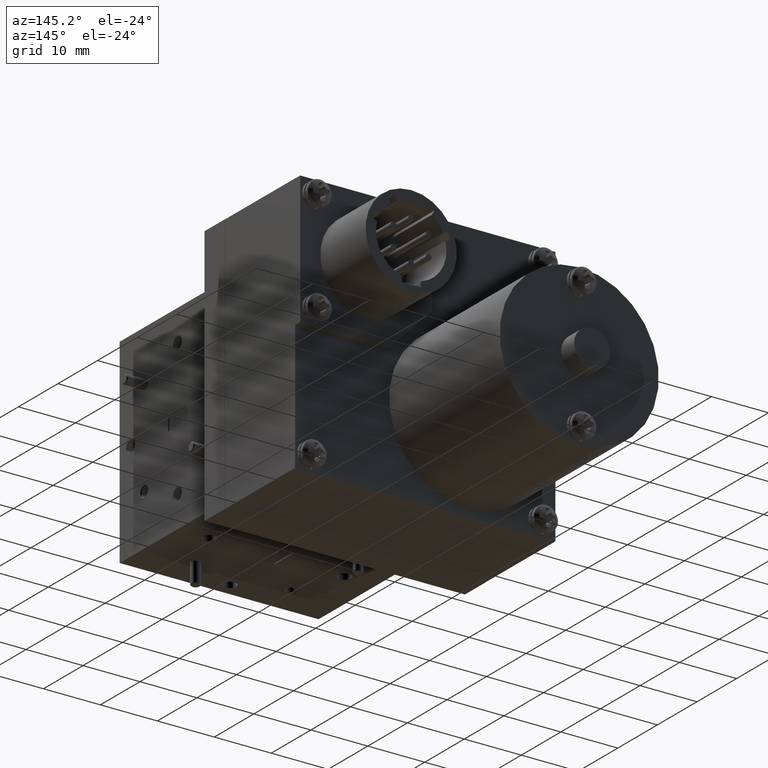
[diagram: clean part render]
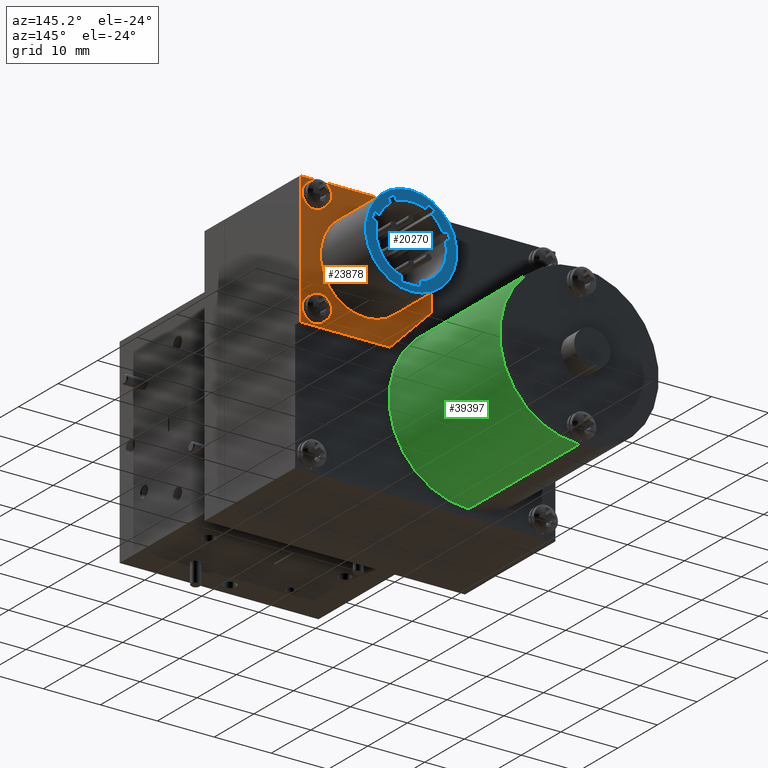
[diagram: same view with three faces highlighted in distinct colors, each labeled with its STEP entity id]
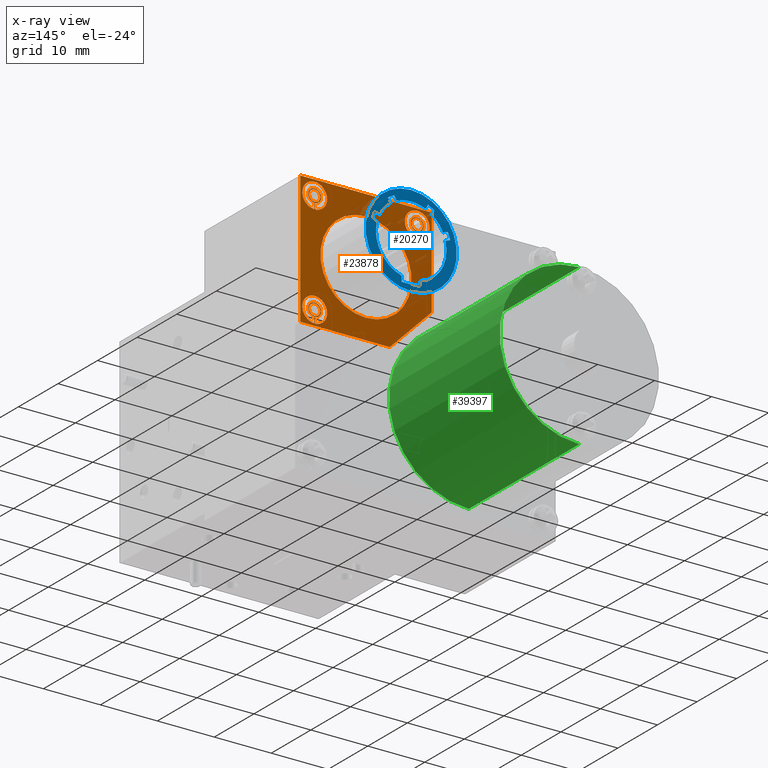
[diagram: x-ray of the same camera — body ghosted, the three highlighted faces saturated]
A machine part, auxiliary view with three faces highlighted in distinct colors.
The next image is the same camera in x-ray (body ghosted, the three faces saturated) — at least one of them is partly hidden behind the body in this view.
Their STEP definitions:

[orange] entity #23878 — the highlighted planar face has unit normal (0, -1, 0).
#163 = FACE_BOUND ( 'NONE', #20244, .T. ) ;
#285 = ORIENTED_EDGE ( 'NONE', *, *, #16000, .T. ) ;
#438 = EDGE_CURVE ( 'NONE', #40076, #31772, #18158, .T. ) ;
#530 = EDGE_LOOP ( 'NONE', ( #4536, #17049 ) ) ;
#538 = CARTESIAN_POINT ( 'NONE',  ( 0.09250000000000011000, 2.099999999999999600, 0.7130363448892497200 ) ) ;
#980 = DIRECTION ( 'NONE',  ( 0.0000000000000000000, 0.0000000000000000000, -1.000000000000000000 ) ) ;
#1005 = VERTEX_POINT ( 'NONE', #30711 ) ;
#1132 = ORIENTED_EDGE ( 'NONE', *, *, #12136, .F. ) ;
#1352 = DIRECTION ( 'NONE',  ( 0.0000000000000000000, 0.0000000000000000000, 1.000000000000000000 ) ) ;
#1948 = DIRECTION ( 'NONE',  ( -1.300324297232245500E-017, -6.548161810916578900E-032, 1.000000000000000000 ) ) ;
#2496 = ORIENTED_EDGE ( 'NONE', *, *, #19204, .F. ) ;
#2534 = ORIENTED_EDGE ( 'NONE', *, *, #438, .F. ) ;
#2707 = CARTESIAN_POINT ( 'NONE',  ( 0.8015000000000004300, 2.099999999999999600, 0.04506949811097104400 ) ) ;
#3162 = VERTEX_POINT ( 'NONE', #7034 ) ;
#3704 = EDGE_CURVE ( 'NONE', #13641, #27987, #28078, .T. ) ;
#3874 = ORIENTED_EDGE ( 'NONE', *, *, #23909, .F. ) ;
#4044 = PLANE ( 'NONE',  #16380 ) ;
#4195 = DIRECTION ( 'NONE',  ( 0.0000000000000000000, -1.000000000000000000, 0.0000000000000000000 ) ) ;
#4441 = EDGE_LOOP ( 'NONE', ( #14642, #2534 ) ) ;
#4536 = ORIENTED_EDGE ( 'NONE', *, *, #22810, .F. ) ;
#5039 = EDGE_LOOP ( 'NONE', ( #33172, #3874, #41847, #2496 ) ) ;
#5099 = DIRECTION ( 'NONE',  ( 0.0000000000000000000, 0.0000000000000000000, 1.000000000000000000 ) ) ;
#5659 = CARTESIAN_POINT ( 'NONE',  ( 0.8015000000000004300, 2.099999999999999600, 0.7540694981109714600 ) ) ;
#6064 = CIRCLE ( 'NONE', #21736, 0.08600000000000025700 ) ;
#6188 = DIRECTION ( 'NONE',  ( -0.0000000000000000000, 1.000000000000000000, -0.0000000000000000000 ) ) ;
#6470 = ORIENTED_EDGE ( 'NONE', *, *, #12159, .F. ) ;
#6477 = AXIS2_PLACEMENT_3D ( 'NONE', #11358, #34033, #38424 ) ;
#6500 = VECTOR ( 'NONE', #29671, 39.37007874015748100 ) ;
#6719 = CIRCLE ( 'NONE', #6477, 0.03850000000000001300 ) ;
#6823 = EDGE_CURVE ( 'NONE', #28584, #13808, #6719, .T. ) ;
#6994 = CARTESIAN_POINT ( 'NONE',  ( -0.01000000000000013200, 2.099999999999999600, 0.2790000000000015200 ) ) ;
#7034 = CARTESIAN_POINT ( 'NONE',  ( 0.7990000000000001500, 2.099999999999999600, 0.1284999999999999200 ) ) ;
#7103 = DIRECTION ( 'NONE',  ( -0.0000000000000000000, 1.000000000000000000, -0.0000000000000000000 ) ) ;
#7128 = CARTESIAN_POINT ( 'NONE',  ( 0.8990000000000001300, 2.099999999999999600, 0.8990000000000001300 ) ) ;
#7697 = DIRECTION ( 'NONE',  ( -0.0000000000000000000, 1.000000000000000000, -0.0000000000000000000 ) ) ;
#8222 = CARTESIAN_POINT ( 'NONE',  ( 0.8990000000000001300, 2.099999999999999600, 0.8990000000000001300 ) ) ;
#8586 = DIRECTION ( 'NONE',  ( 0.0000000000000000000, 0.0000000000000000000, 1.000000000000000000 ) ) ;
#8619 = DIRECTION ( 'NONE',  ( 0.0000000000000000000, 0.0000000000000000000, -1.000000000000000000 ) ) ;
#8872 = CARTESIAN_POINT ( 'NONE',  ( 0.7990000000000001500, 2.099999999999999600, 0.7990000000000002700 ) ) ;
#9283 = CARTESIAN_POINT ( 'NONE',  ( 0.7965000000000003200, 2.099999999999999600, 0.04506949811097104400 ) ) ;
#9354 = EDGE_LOOP ( 'NONE', ( #37976, #19281 ) ) ;
#9417 = CARTESIAN_POINT ( 'NONE',  ( 0.4445000000000000100, 2.099999999999999600, 0.4445000000000002300 ) ) ;
#9683 = CIRCLE ( 'NONE', #22614, 0.03850000000000001300 ) ;
#9810 = VERTEX_POINT ( 'NONE', #29648 ) ;
#9941 = AXIS2_PLACEMENT_3D ( 'NONE', #35152, #12573, #15701 ) ;
#10385 = DIRECTION ( 'NONE',  ( -1.000000000000000000, -0.0000000000000000000, 1.239245561642055000E-016 ) ) ;
#10389 = LINE ( 'NONE', #17970, #36282 ) ;
#10910 = CARTESIAN_POINT ( 'NONE',  ( 0.7990000000000001500, 2.099999999999999600, 0.8375000000000002400 ) ) ;
#10918 = EDGE_CURVE ( 'NONE', #41516, #40710, #36860, .T. ) ;
#10943 = VERTEX_POINT ( 'NONE', #11765 ) ;
#10963 = VECTOR ( 'NONE', #27650, 39.37007874015748100 ) ;
#11358 = CARTESIAN_POINT ( 'NONE',  ( 0.08999999999999987200, 2.099999999999999600, 0.7990000000000002700 ) ) ;
#11497 = VERTEX_POINT ( 'NONE', #20111 ) ;
#11590 = DIRECTION ( 'NONE',  ( -0.0000000000000000000, 1.000000000000000000, -0.0000000000000000000 ) ) ;
#11765 = CARTESIAN_POINT ( 'NONE',  ( 0.7965000000000003200, 2.099999999999999600, 0.7540694981109714600 ) ) ;
#11984 = CARTESIAN_POINT ( 'NONE',  ( -0.01000000000000013200, 2.099999999999999600, 0.2790000000000015200 ) ) ;
#12091 = EDGE_CURVE ( 'NONE', #19424, #13641, #10389, .T. ) ;
#12101 = EDGE_CURVE ( 'NONE', #20758, #10943, #30687, .T. ) ;
#12125 = DIRECTION ( 'NONE',  ( 0.0000000000000000000, 0.0000000000000000000, -1.000000000000000000 ) ) ;
#12136 = EDGE_CURVE ( 'NONE', #3162, #24759, #30203, .T. ) ;
#12159 = EDGE_CURVE ( 'NONE', #1005, #19424, #41350, .T. ) ;
#12388 = CARTESIAN_POINT ( 'NONE',  ( 0.7965000000000003200, 2.099999999999999600, 0.7540694981109714600 ) ) ;
#12512 = LINE ( 'NONE', #6994, #6500 ) ;
#12532 = VERTEX_POINT ( 'NONE', #33110 ) ;
#12573 = DIRECTION ( 'NONE',  ( -4.669844817296331400E-031, -1.000000000000000000, 7.087422195345027900E-032 ) ) ;
#12886 = DIRECTION ( 'NONE',  ( -1.300324297232245500E-017, -6.548161810916578900E-032, 1.000000000000000000 ) ) ;
#12951 = EDGE_CURVE ( 'NONE', #29407, #41221, #24525, .T. ) ;
#13107 = EDGE_LOOP ( 'NONE', ( #17573, #23055, #15071, #285, #41974 ) ) ;
#13241 = ORIENTED_EDGE ( 'NONE', *, *, #35533, .F. ) ;
#13377 = CARTESIAN_POINT ( 'NONE',  ( 0.08750000000000002200, 2.099999999999999600, 0.7540694981109714600 ) ) ;
#13641 = VERTEX_POINT ( 'NONE', #2707 ) ;
#13808 = VERTEX_POINT ( 'NONE', #19796 ) ;
#14204 = DIRECTION ( 'NONE',  ( 0.0000000000000000000, 0.0000000000000000000, 1.000000000000000000 ) ) ;
#14602 = CARTESIAN_POINT ( 'NONE',  ( 0.08750000000000002200, 2.099999999999999600, 0.7540694981109714600 ) ) ;
#14642 = ORIENTED_EDGE ( 'NONE', *, *, #40365, .F. ) ;
#15071 = ORIENTED_EDGE ( 'NONE', *, *, #26347, .T. ) ;
#15132 = CARTESIAN_POINT ( 'NONE',  ( 0.7990000000000001500, 2.099999999999999600, 0.7990000000000001500 ) ) ;
#15285 = DIRECTION ( 'NONE',  ( 4.669844817296331400E-031, 1.000000000000000000, -7.087422195345027900E-032 ) ) ;
#15408 = CARTESIAN_POINT ( 'NONE',  ( 0.4445000000000000100, 2.099999999999999600, 0.1295000000000002800 ) ) ;
#15701 = DIRECTION ( 'NONE',  ( 0.0000000000000000000, 0.0000000000000000000, 1.000000000000000000 ) ) ;
#15782 = AXIS2_PLACEMENT_3D ( 'NONE', #26640, #7103, #980 ) ;
#16000 = EDGE_CURVE ( 'NONE', #41374, #9810, #12512, .T. ) ;
#16380 = AXIS2_PLACEMENT_3D ( 'NONE', #39754, #4195, #26827 ) ;
#16478 = CARTESIAN_POINT ( 'NONE',  ( 0.7990000000000001500, 2.099999999999999600, 0.08999999999999990000 ) ) ;
#16917 = VECTOR ( 'NONE', #10385, 39.37007874015748100 ) ;
#16983 = EDGE_LOOP ( 'NONE', ( #1132, #32236 ) ) ;
#17049 = ORIENTED_EDGE ( 'NONE', *, *, #21394, .F. ) ;
#17196 = EDGE_CURVE ( 'NONE', #9810, #19535, #40397, .T. ) ;
#17344 = CARTESIAN_POINT ( 'NONE',  ( 0.8015000000000004300, 2.099999999999999600, 0.7130363448892497200 ) ) ;
#17573 = ORIENTED_EDGE ( 'NONE', *, *, #20037, .T. ) ;
#17611 = DIRECTION ( 'NONE',  ( -0.7071067811865460200, 0.0000000000000000000, 0.7071067811865489100 ) ) ;
#17970 = CARTESIAN_POINT ( 'NONE',  ( 0.8015000000000004300, 2.099999999999999600, 0.04506949811097104400 ) ) ;
#18158 = CIRCLE ( 'NONE', #26967, 0.3149999999999998900 ) ;
#18409 = ORIENTED_EDGE ( 'NONE', *, *, #12101, .F. ) ;
#18411 = FACE_BOUND ( 'NONE', #16983, .T. ) ;
#18511 = DIRECTION ( 'NONE',  ( -1.300324297232245500E-017, -6.548161810916578900E-032, 1.000000000000000000 ) ) ;
#19204 = EDGE_CURVE ( 'NONE', #40710, #20456, #6064, .T. ) ;
#19281 = ORIENTED_EDGE ( 'NONE', *, *, #6823, .F. ) ;
#19424 = VERTEX_POINT ( 'NONE', #38999 ) ;
#19481 = VERTEX_POINT ( 'NONE', #10910 ) ;
#19535 = VERTEX_POINT ( 'NONE', #29772 ) ;
#19582 = DIRECTION ( 'NONE',  ( 0.0000000000000000000, 0.0000000000000000000, 1.000000000000000000 ) ) ;
#19755 = LINE ( 'NONE', #27556, #25882 ) ;
#19796 = CARTESIAN_POINT ( 'NONE',  ( 0.08999999999999987200, 2.099999999999999600, 0.8375000000000002400 ) ) ;
#20037 = EDGE_CURVE ( 'NONE', #19535, #29407, #39239, .T. ) ;
#20111 = CARTESIAN_POINT ( 'NONE',  ( 0.7990000000000001500, 2.099999999999999600, 0.7605000000000002900 ) ) ;
#20244 = EDGE_LOOP ( 'NONE', ( #27489, #36732, #6470, #20390 ) ) ;
#20390 = ORIENTED_EDGE ( 'NONE', *, *, #25787, .F. ) ;
#20456 = VERTEX_POINT ( 'NONE', #538 ) ;
#20499 = CARTESIAN_POINT ( 'NONE',  ( 0.7990000000000001500, 2.099999999999999600, 0.05149999999999987900 ) ) ;
#20758 = VERTEX_POINT ( 'NONE', #5659 ) ;
#20926 = CARTESIAN_POINT ( 'NONE',  ( 0.2790000000000002500, 2.099999999999999600, -0.01000000000000003500 ) ) ;
#21002 = CARTESIAN_POINT ( 'NONE',  ( 0.4445000000000000600, 2.099999999999999600, 0.7595000000000001700 ) ) ;
#21252 = CIRCLE ( 'NONE', #15782, 0.3149999999999998900 ) ;
#21347 = DIRECTION ( 'NONE',  ( 4.669844817296331400E-031, 1.000000000000000000, -7.087422195345027900E-032 ) ) ;
#21394 = EDGE_CURVE ( 'NONE', #11497, #19481, #9683, .T. ) ;
#21565 = DIRECTION ( 'NONE',  ( 0.0000000000000000000, 0.0000000000000000000, -1.000000000000000000 ) ) ;
#21642 = CARTESIAN_POINT ( 'NONE',  ( 0.8015000000000004300, 2.099999999999999600, 0.7540694981109714600 ) ) ;
#21736 = AXIS2_PLACEMENT_3D ( 'NONE', #25117, #31512, #21565 ) ;
#22130 = AXIS2_PLACEMENT_3D ( 'NONE', #27748, #15285, #8619 ) ;
#22614 = AXIS2_PLACEMENT_3D ( 'NONE', #40242, #37120, #1352 ) ;
#22791 = CIRCLE ( 'NONE', #31078, 0.03850000000000001300 ) ;
#22810 = EDGE_CURVE ( 'NONE', #19481, #11497, #22791, .T. ) ;
#22942 = LINE ( 'NONE', #12388, #39665 ) ;
#23055 = ORIENTED_EDGE ( 'NONE', *, *, #12951, .T. ) ;
#23878 = ADVANCED_FACE ( 'NONE', ( #27585, #34172, #18411, #26568, #41779, #163, #30113, #28604 ), #4044, .F. ) ;
#23909 = EDGE_CURVE ( 'NONE', #26452, #41516, #25546, .T. ) ;
#24525 = LINE ( 'NONE', #35777, #16917 ) ;
#24759 = VERTEX_POINT ( 'NONE', #20499 ) ;
#25117 = CARTESIAN_POINT ( 'NONE',  ( 0.08999999999999985800, 2.099999999999999600, 0.7990000000000001500 ) ) ;
#25546 = CIRCLE ( 'NONE', #27016, 0.04500000000000020000 ) ;
#25607 = AXIS2_PLACEMENT_3D ( 'NONE', #28296, #21347, #12125 ) ;
#25787 = EDGE_CURVE ( 'NONE', #27987, #1005, #29488, .T. ) ;
#25882 = VECTOR ( 'NONE', #17611, 39.37007874015748900 ) ;
#26014 = ORIENTED_EDGE ( 'NONE', *, *, #38593, .F. ) ;
#26176 = VERTEX_POINT ( 'NONE', #17344 ) ;
#26291 = VECTOR ( 'NONE', #1948, 39.37007874015748100 ) ;
#26347 = EDGE_CURVE ( 'NONE', #41221, #41374, #19755, .T. ) ;
#26452 = VERTEX_POINT ( 'NONE', #37623 ) ;
#26529 = EDGE_CURVE ( 'NONE', #20456, #26452, #38076, .T. ) ;
#26568 = FACE_BOUND ( 'NONE', #9354, .T. ) ;
#26640 = CARTESIAN_POINT ( 'NONE',  ( 0.4445000000000000100, 2.099999999999999600, 0.4445000000000002300 ) ) ;
#26687 = AXIS2_PLACEMENT_3D ( 'NONE', #37839, #11590, #34136 ) ;
#26827 = DIRECTION ( 'NONE',  ( 0.0000000000000000000, -0.0000000000000000000, -1.000000000000000000 ) ) ;
#26967 = AXIS2_PLACEMENT_3D ( 'NONE', #9417, #6188, #32103 ) ;
#27016 = AXIS2_PLACEMENT_3D ( 'NONE', #30812, #40456, #14204 ) ;
#27293 = AXIS2_PLACEMENT_3D ( 'NONE', #16478, #35654, #19582 ) ;
#27489 = ORIENTED_EDGE ( 'NONE', *, *, #3704, .F. ) ;
#27556 = CARTESIAN_POINT ( 'NONE',  ( 0.2790000000000002500, 2.099999999999999600, -0.01000000000000003500 ) ) ;
#27585 = FACE_BOUND ( 'NONE', #4441, .T. ) ;
#27586 = ORIENTED_EDGE ( 'NONE', *, *, #41323, .F. ) ;
#27650 = DIRECTION ( 'NONE',  ( -1.300324297232087800E-017, 6.394087415365600000E-032, -1.000000000000000000 ) ) ;
#27748 = CARTESIAN_POINT ( 'NONE',  ( 0.7990000000000001500, 2.099999999999999600, 0.08999999999999969100 ) ) ;
#27987 = VERTEX_POINT ( 'NONE', #9283 ) ;
#28078 = CIRCLE ( 'NONE', #9941, 0.04500000000000017200 ) ;
#28296 = CARTESIAN_POINT ( 'NONE',  ( 0.7990000000000001500, 2.099999999999999600, 0.7990000000000001500 ) ) ;
#28323 = CARTESIAN_POINT ( 'NONE',  ( 0.08750000000000002200, 2.099999999999999600, 0.7130363448892500500 ) ) ;
#28368 = CIRCLE ( 'NONE', #39044, 0.03850000000000001300 ) ;
#28584 = VERTEX_POINT ( 'NONE', #32871 ) ;
#28604 = FACE_BOUND ( 'NONE', #34445, .T. ) ;
#29407 = VERTEX_POINT ( 'NONE', #36140 ) ;
#29488 = LINE ( 'NONE', #37371, #36088 ) ;
#29648 = CARTESIAN_POINT ( 'NONE',  ( -0.01000000000000016700, 2.099999999999999600, 0.8990000000000003500 ) ) ;
#29671 = DIRECTION ( 'NONE',  ( -5.507758051742475500E-017, 0.0000000000000000000, 1.000000000000000000 ) ) ;
#29772 = CARTESIAN_POINT ( 'NONE',  ( 0.8990000000000001300, 2.099999999999999600, 0.8990000000000001300 ) ) ;
#30113 = FACE_BOUND ( 'NONE', #5039, .T. ) ;
#30203 = CIRCLE ( 'NONE', #26687, 0.03850000000000001300 ) ;
#30687 = CIRCLE ( 'NONE', #34018, 0.04500000000000020000 ) ;
#30699 = DIRECTION ( 'NONE',  ( -1.300324297232087800E-017, 6.394087415365600000E-032, -1.000000000000000000 ) ) ;
#30711 = CARTESIAN_POINT ( 'NONE',  ( 0.7965000000000003200, 2.099999999999999600, 0.004036344889249549700 ) ) ;
#30812 = CARTESIAN_POINT ( 'NONE',  ( 0.08999999999999985800, 2.099999999999999600, 0.7990000000000001500 ) ) ;
#31078 = AXIS2_PLACEMENT_3D ( 'NONE', #8872, #34807, #8586 ) ;
#31301 = DIRECTION ( 'NONE',  ( -4.669844817296331400E-031, -1.000000000000000000, 7.087422195345027900E-032 ) ) ;
#31512 = DIRECTION ( 'NONE',  ( 4.669844817296331400E-031, 1.000000000000000000, -7.087422195345027900E-032 ) ) ;
#31772 = VERTEX_POINT ( 'NONE', #15408 ) ;
#32103 = DIRECTION ( 'NONE',  ( 0.0000000000000000000, 0.0000000000000000000, -1.000000000000000000 ) ) ;
#32236 = ORIENTED_EDGE ( 'NONE', *, *, #32613, .F. ) ;
#32613 = EDGE_CURVE ( 'NONE', #24759, #3162, #35917, .T. ) ;
#32865 = LINE ( 'NONE', #21642, #26291 ) ;
#32871 = CARTESIAN_POINT ( 'NONE',  ( 0.08999999999999987200, 2.099999999999999600, 0.7605000000000002900 ) ) ;
#33110 = CARTESIAN_POINT ( 'NONE',  ( 0.7965000000000003200, 2.099999999999999600, 0.7130363448892500500 ) ) ;
#33172 = ORIENTED_EDGE ( 'NONE', *, *, #10918, .F. ) ;
#34018 = AXIS2_PLACEMENT_3D ( 'NONE', #15132, #31301, #5099 ) ;
#34033 = DIRECTION ( 'NONE',  ( -0.0000000000000000000, 1.000000000000000000, -0.0000000000000000000 ) ) ;
#34136 = DIRECTION ( 'NONE',  ( 0.0000000000000000000, 0.0000000000000000000, 1.000000000000000000 ) ) ;
#34172 = FACE_OUTER_BOUND ( 'NONE', #13107, .T. ) ;
#34445 = EDGE_LOOP ( 'NONE', ( #26014, #18409, #13241, #27586 ) ) ;
#34500 = VECTOR ( 'NONE', #12886, 39.37007874015748100 ) ;
#34807 = DIRECTION ( 'NONE',  ( -0.0000000000000000000, 1.000000000000000000, -0.0000000000000000000 ) ) ;
#34844 = EDGE_CURVE ( 'NONE', #13808, #28584, #28368, .T. ) ;
#35152 = CARTESIAN_POINT ( 'NONE',  ( 0.7990000000000001500, 2.099999999999999600, 0.08999999999999969100 ) ) ;
#35533 = EDGE_CURVE ( 'NONE', #26176, #20758, #32865, .T. ) ;
#35654 = DIRECTION ( 'NONE',  ( -0.0000000000000000000, 1.000000000000000000, -0.0000000000000000000 ) ) ;
#35777 = CARTESIAN_POINT ( 'NONE',  ( 0.2790000000000002500, 2.099999999999999600, -0.01000000000000003500 ) ) ;
#35917 = CIRCLE ( 'NONE', #27293, 0.03850000000000001300 ) ;
#36088 = VECTOR ( 'NONE', #30699, 39.37007874015748100 ) ;
#36140 = CARTESIAN_POINT ( 'NONE',  ( 0.8990000000000001300, 2.099999999999999600, -0.01000000000000011100 ) ) ;
#36282 = VECTOR ( 'NONE', #18511, 39.37007874015748100 ) ;
#36335 = DIRECTION ( 'NONE',  ( 0.0000000000000000000, 0.0000000000000000000, -1.000000000000000000 ) ) ;
#36493 = DIRECTION ( 'NONE',  ( 0.0000000000000000000, 0.0000000000000000000, 1.000000000000000000 ) ) ;
#36732 = ORIENTED_EDGE ( 'NONE', *, *, #12091, .F. ) ;
#36860 = LINE ( 'NONE', #14602, #10963 ) ;
#36940 = CIRCLE ( 'NONE', #25607, 0.08600000000000025700 ) ;
#37120 = DIRECTION ( 'NONE',  ( -0.0000000000000000000, 1.000000000000000000, -0.0000000000000000000 ) ) ;
#37371 = CARTESIAN_POINT ( 'NONE',  ( 0.7965000000000003200, 2.099999999999999600, 0.04506949811097104400 ) ) ;
#37623 = CARTESIAN_POINT ( 'NONE',  ( 0.09250000000000011000, 2.099999999999999600, 0.7540694981109714600 ) ) ;
#37839 = CARTESIAN_POINT ( 'NONE',  ( 0.7990000000000001500, 2.099999999999999600, 0.08999999999999990000 ) ) ;
#37976 = ORIENTED_EDGE ( 'NONE', *, *, #34844, .F. ) ;
#38076 = LINE ( 'NONE', #38313, #34500 ) ;
#38228 = VECTOR ( 'NONE', #36335, 39.37007874015748100 ) ;
#38313 = CARTESIAN_POINT ( 'NONE',  ( 0.09250000000000011000, 2.099999999999999600, 0.7540694981109714600 ) ) ;
#38351 = VECTOR ( 'NONE', #41264, 39.37007874015748100 ) ;
#38424 = DIRECTION ( 'NONE',  ( 0.0000000000000000000, 0.0000000000000000000, 1.000000000000000000 ) ) ;
#38500 = DIRECTION ( 'NONE',  ( -1.300324297232087800E-017, 6.394087415365600000E-032, -1.000000000000000000 ) ) ;
#38593 = EDGE_CURVE ( 'NONE', #10943, #12532, #22942, .T. ) ;
#38999 = CARTESIAN_POINT ( 'NONE',  ( 0.8015000000000004300, 2.099999999999999600, 0.004036344889249345000 ) ) ;
#39044 = AXIS2_PLACEMENT_3D ( 'NONE', #40179, #7697, #36493 ) ;
#39239 = LINE ( 'NONE', #7128, #38228 ) ;
#39665 = VECTOR ( 'NONE', #38500, 39.37007874015748100 ) ;
#39754 = CARTESIAN_POINT ( 'NONE',  ( 0.0000000000000000000, 2.099999999999999600, 0.0000000000000000000 ) ) ;
#40076 = VERTEX_POINT ( 'NONE', #21002 ) ;
#40179 = CARTESIAN_POINT ( 'NONE',  ( 0.08999999999999987200, 2.099999999999999600, 0.7990000000000002700 ) ) ;
#40242 = CARTESIAN_POINT ( 'NONE',  ( 0.7990000000000001500, 2.099999999999999600, 0.7990000000000002700 ) ) ;
#40365 = EDGE_CURVE ( 'NONE', #31772, #40076, #21252, .T. ) ;
#40397 = LINE ( 'NONE', #8222, #38351 ) ;
#40456 = DIRECTION ( 'NONE',  ( -4.669844817296331400E-031, -1.000000000000000000, 7.087422195345027900E-032 ) ) ;
#40710 = VERTEX_POINT ( 'NONE', #28323 ) ;
#41221 = VERTEX_POINT ( 'NONE', #20926 ) ;
#41264 = DIRECTION ( 'NONE',  ( 1.000000000000000000, -0.0000000000000000000, -1.502666663181662400E-016 ) ) ;
#41323 = EDGE_CURVE ( 'NONE', #12532, #26176, #36940, .T. ) ;
#41350 = CIRCLE ( 'NONE', #22130, 0.08600000000000029800 ) ;
#41374 = VERTEX_POINT ( 'NONE', #11984 ) ;
#41516 = VERTEX_POINT ( 'NONE', #13377 ) ;
#41779 = FACE_BOUND ( 'NONE', #530, .T. ) ;
#41847 = ORIENTED_EDGE ( 'NONE', *, *, #26529, .F. ) ;
#41974 = ORIENTED_EDGE ( 'NONE', *, *, #17196, .T. ) ;

[blue] entity #20270 — the highlighted planar face has unit normal (0, 1, 0).
#134 = CARTESIAN_POINT ( 'NONE',  ( 0.4445000000000000100, 2.549999999999999800, 0.1295000000000002800 ) ) ;
#659 = DIRECTION ( 'NONE',  ( 0.0000000000000000000, 0.0000000000000000000, 1.000000000000000000 ) ) ;
#682 = VERTEX_POINT ( 'NONE', #7843 ) ;
#859 = ORIENTED_EDGE ( 'NONE', *, *, #41629, .F. ) ;
#1071 = VERTEX_POINT ( 'NONE', #8307 ) ;
#1339 = EDGE_CURVE ( 'NONE', #8773, #18403, #29774, .T. ) ;
#1543 = DIRECTION ( 'NONE',  ( 0.0000000000000000000, 1.000000000000000000, 0.0000000000000000000 ) ) ;
#2081 = VECTOR ( 'NONE', #27306, 39.37007874015748100 ) ;
#2144 = VERTEX_POINT ( 'NONE', #18261 ) ;
#2180 = DIRECTION ( 'NONE',  ( 0.3420201433256708200, 0.0000000000000000000, 0.9396926207859076500 ) ) ;
#2322 = ORIENTED_EDGE ( 'NONE', *, *, #6909, .F. ) ;
#2557 = DIRECTION ( 'NONE',  ( 0.5000000000000025500, 0.0000000000000000000, -0.8660254037844371500 ) ) ;
#2611 = DIRECTION ( 'NONE',  ( 0.0000000000000000000, 0.0000000000000000000, 1.000000000000000000 ) ) ;
#3089 = AXIS2_PLACEMENT_3D ( 'NONE', #16842, #1543, #24066 ) ;
#3484 = VECTOR ( 'NONE', #17385, 39.37007874015748900 ) ;
#3872 = CARTESIAN_POINT ( 'NONE',  ( 0.1914591661590828200, 2.549999999999999800, 0.5632037758838923700 ) ) ;
#3878 = DIRECTION ( 'NONE',  ( 0.0000000000000000000, 1.000000000000000000, -0.0000000000000000000 ) ) ;
#3948 = CARTESIAN_POINT ( 'NONE',  ( 0.4445000000000000100, 2.549999999999999800, 0.4445000000000002300 ) ) ;
#4593 = ORIENTED_EDGE ( 'NONE', *, *, #31182, .T. ) ;
#4756 = CARTESIAN_POINT ( 'NONE',  ( 0.2836595215259235500, 2.549999999999999800, 0.6730838806307878300 ) ) ;
#4894 = VERTEX_POINT ( 'NONE', #38824 ) ;
#5006 = ORIENTED_EDGE ( 'NONE', *, *, #5545, .T. ) ;
#5545 = EDGE_CURVE ( 'NONE', #6196, #29591, #37614, .T. ) ;
#5607 = CARTESIAN_POINT ( 'NONE',  ( 0.4445000000000000100, 2.549999999999999800, 0.4445000000000002300 ) ) ;
#5768 = DIRECTION ( 'NONE',  ( -0.5000000000000001100, 0.0000000000000000000, -0.8660254037844386000 ) ) ;
#6016 = CARTESIAN_POINT ( 'NONE',  ( -0.09941342731916810700, 2.549999999999999800, 0.2731361467500045800 ) ) ;
#6035 = ORIENTED_EDGE ( 'NONE', *, *, #6122, .T. ) ;
#6122 = EDGE_CURVE ( 'NONE', #2144, #36080, #41341, .T. ) ;
#6196 = VERTEX_POINT ( 'NONE', #15527 ) ;
#6211 = ORIENTED_EDGE ( 'NONE', *, *, #21465, .T. ) ;
#6487 = VECTOR ( 'NONE', #24386, 39.37007874015748100 ) ;
#6622 = CARTESIAN_POINT ( 'NONE',  ( 0.4445000000000000100, 2.549999999999999800, 0.4445000000000002300 ) ) ;
#6751 = CARTESIAN_POINT ( 'NONE',  ( 0.4445000000000000100, 2.549999999999999800, 0.4445000000000002300 ) ) ;
#6822 = VERTEX_POINT ( 'NONE', #27099 ) ;
#6869 = EDGE_CURVE ( 'NONE', #1071, #20470, #37146, .T. ) ;
#6909 = EDGE_CURVE ( 'NONE', #4894, #15051, #9176, .T. ) ;
#7143 = LINE ( 'NONE', #34096, #10663 ) ;
#7337 = VECTOR ( 'NONE', #17585, 39.37007874015748100 ) ;
#7545 = CARTESIAN_POINT ( 'NONE',  ( 0.6053404784740764600, 2.549999999999999800, 0.6730838806307878300 ) ) ;
#7843 = CARTESIAN_POINT ( 'NONE',  ( 0.3795000000000000000, 2.549999999999999800, 0.2093170924578065800 ) ) ;
#7938 = CARTESIAN_POINT ( 'NONE',  ( 0.3269607917151456900, 2.549999999999999800, 0.6980838806307879700 ) ) ;
#8098 = CARTESIAN_POINT ( 'NONE',  ( 0.5094999999999999500, 2.549999999999999800, 0.2093170924578065800 ) ) ;
#8269 = VERTEX_POINT ( 'NONE', #17971 ) ;
#8307 = CARTESIAN_POINT ( 'NONE',  ( 0.2249721791104049600, 2.549999999999999800, 0.5510060367090333600 ) ) ;
#8482 = ORIENTED_EDGE ( 'NONE', *, *, #42016, .F. ) ;
#8595 = CIRCLE ( 'NONE', #3089, 0.3150000000000000000 ) ;
#8712 = ORIENTED_EDGE ( 'NONE', *, *, #23361, .F. ) ;
#8773 = VERTEX_POINT ( 'NONE', #30269 ) ;
#9176 = LINE ( 'NONE', #31660, #39134 ) ;
#9599 = LINE ( 'NONE', #26699, #38379 ) ;
#9722 = DIRECTION ( 'NONE',  ( 0.0000000000000000000, 0.0000000000000000000, 1.000000000000000000 ) ) ;
#9769 = CARTESIAN_POINT ( 'NONE',  ( 0.3014914232616710000, 2.549999999999999800, 0.6421981208288979300 ) ) ;
#10213 = CARTESIAN_POINT ( 'NONE',  ( 0.1863056651864997100, 2.549999999999999800, 0.5118706082163787500 ) ) ;
#10320 = CARTESIAN_POINT ( 'NONE',  ( -0.08231242015288478500, 2.549999999999999800, 0.2261515157107138200 ) ) ;
#10582 = CIRCLE ( 'NONE', #12577, 0.2440000000000001100 ) ;
#10663 = VECTOR ( 'NONE', #11289, 39.37007874015748100 ) ;
#11289 = DIRECTION ( 'NONE',  ( -0.8660254037844377100, 0.0000000000000000000, 0.5000000000000015500 ) ) ;
#11307 = VERTEX_POINT ( 'NONE', #41178 ) ;
#11315 = CARTESIAN_POINT ( 'NONE',  ( 0.5442073065491072100, 2.549999999999999800, 0.6671981208288980700 ) ) ;
#11373 = VECTOR ( 'NONE', #20981, 39.37007874015748100 ) ;
#11459 = ORIENTED_EDGE ( 'NONE', *, *, #20028, .F. ) ;
#12456 = ORIENTED_EDGE ( 'NONE', *, *, #14190, .F. ) ;
#12540 = LINE ( 'NONE', #23483, #3484 ) ;
#12577 = AXIS2_PLACEMENT_3D ( 'NONE', #3948, #39663, #659 ) ;
#12672 = VECTOR ( 'NONE', #40281, 39.37007874015748100 ) ;
#12768 = DIRECTION ( 'NONE',  ( 0.0000000000000000000, 1.000000000000000000, -0.0000000000000000000 ) ) ;
#13055 = VERTEX_POINT ( 'NONE', #7545 ) ;
#13670 = ORIENTED_EDGE ( 'NONE', *, *, #33247, .T. ) ;
#13916 = AXIS2_PLACEMENT_3D ( 'NONE', #22723, #12768, #34631 ) ;
#14190 = EDGE_CURVE ( 'NONE', #14987, #11307, #16309, .T. ) ;
#14756 = VERTEX_POINT ( 'NONE', #4756 ) ;
#14987 = VERTEX_POINT ( 'NONE', #23403 ) ;
#15051 = VERTEX_POINT ( 'NONE', #3872 ) ;
#15445 = ORIENTED_EDGE ( 'NONE', *, *, #1339, .F. ) ;
#15527 = CARTESIAN_POINT ( 'NONE',  ( 0.6975408338409172500, 2.549999999999999800, 0.5632037758838923700 ) ) ;
#15562 = CARTESIAN_POINT ( 'NONE',  ( 0.4445000000000000100, 2.549999999999999800, 0.4445000000000002300 ) ) ;
#15686 = AXIS2_PLACEMENT_3D ( 'NONE', #5607, #37775, #2611 ) ;
#15922 = LINE ( 'NONE', #20559, #7337 ) ;
#16261 = LINE ( 'NONE', #10213, #12672 ) ;
#16309 = CIRCLE ( 'NONE', #23783, 0.2440000000000001100 ) ;
#16355 = ORIENTED_EDGE ( 'NONE', *, *, #21414, .F. ) ;
#16560 = CARTESIAN_POINT ( 'NONE',  ( 0.2078711719441214400, 2.549999999999999800, 0.5040214056697377400 ) ) ;
#16668 = DIRECTION ( 'NONE',  ( -0.9396926207859090900, 0.0000000000000000000, -0.3420201433256669900 ) ) ;
#16842 = CARTESIAN_POINT ( 'NONE',  ( 0.4445000000000000100, 2.549999999999999800, 0.4445000000000002300 ) ) ;
#16963 = CARTESIAN_POINT ( 'NONE',  ( 0.4445000000000000100, 2.549999999999999800, 0.4445000000000002300 ) ) ;
#17089 = DIRECTION ( 'NONE',  ( 0.8660254037844377100, 0.0000000000000000000, 0.5000000000000015500 ) ) ;
#17254 = DIRECTION ( 'NONE',  ( 0.0000000000000000000, 1.000000000000000000, 0.0000000000000000000 ) ) ;
#17284 = LINE ( 'NONE', #23616, #2081 ) ;
#17315 = ORIENTED_EDGE ( 'NONE', *, *, #6869, .F. ) ;
#17385 = DIRECTION ( 'NONE',  ( 0.9396926207859068700, 0.0000000000000000000, -0.3420201433256726500 ) ) ;
#17585 = DIRECTION ( 'NONE',  ( 0.0000000000000000000, 0.0000000000000000000, 1.000000000000000000 ) ) ;
#17807 = LINE ( 'NONE', #26740, #31023 ) ;
#17971 = CARTESIAN_POINT ( 'NONE',  ( 0.7146418410072007400, 2.549999999999999800, 0.5162191448445968600 ) ) ;
#18261 = CARTESIAN_POINT ( 'NONE',  ( 0.3795000000000000000, 2.549999999999999800, 0.1726631923377559000 ) ) ;
#18403 = VERTEX_POINT ( 'NONE', #8098 ) ;
#18404 = EDGE_CURVE ( 'NONE', #13055, #6822, #36255, .T. ) ;
#18981 = CIRCLE ( 'NONE', #13916, 0.2440000000000001100 ) ;
#19299 = ORIENTED_EDGE ( 'NONE', *, *, #23363, .F. ) ;
#19643 = ORIENTED_EDGE ( 'NONE', *, *, #30615, .T. ) ;
#20028 = EDGE_CURVE ( 'NONE', #682, #35289, #23465, .T. ) ;
#20270 = ADVANCED_FACE ( 'NONE', ( #24428, #32581 ), #28911, .T. ) ;
#20470 = VERTEX_POINT ( 'NONE', #9769 ) ;
#20533 = EDGE_CURVE ( 'NONE', #30822, #33846, #27009, .T. ) ;
#20559 = CARTESIAN_POINT ( 'NONE',  ( 0.3795000000000000000, 2.549999999999999800, -0.0000000000000000000 ) ) ;
#20610 = LINE ( 'NONE', #31541, #28246 ) ;
#20696 = CARTESIAN_POINT ( 'NONE',  ( 0.1625514891035166600, 2.549999999999999800, -0.09384914599109066300 ) ) ;
#20981 = DIRECTION ( 'NONE',  ( -0.5000000000000032200, 0.0000000000000000000, -0.8660254037844368200 ) ) ;
#21274 = CARTESIAN_POINT ( 'NONE',  ( 0.5094999999999999500, 2.549999999999999800, -0.0000000000000000000 ) ) ;
#21414 = EDGE_CURVE ( 'NONE', #14756, #37920, #17807, .T. ) ;
#21465 = EDGE_CURVE ( 'NONE', #8269, #6196, #17284, .T. ) ;
#22444 = DIRECTION ( 'NONE',  ( -0.9396926207859071000, 0.0000000000000000000, -0.3420201433256721000 ) ) ;
#22723 = CARTESIAN_POINT ( 'NONE',  ( 0.4445000000000000100, 2.549999999999999800, 0.4445000000000002300 ) ) ;
#23361 = EDGE_CURVE ( 'NONE', #8269, #8773, #27831, .T. ) ;
#23363 = EDGE_CURVE ( 'NONE', #11307, #37362, #10582, .T. ) ;
#23403 = CARTESIAN_POINT ( 'NONE',  ( 0.3447926934508928100, 2.549999999999999800, 0.6671981208288980700 ) ) ;
#23465 = CIRCLE ( 'NONE', #30198, 0.2439999999999999700 ) ;
#23483 = CARTESIAN_POINT ( 'NONE',  ( 0.2034066723527848100, 2.549999999999999800, 0.5588552392556738200 ) ) ;
#23616 = CARTESIAN_POINT ( 'NONE',  ( 0.7969542611600853900, 2.549999999999999800, 0.2900676291338853400 ) ) ;
#23783 = AXIS2_PLACEMENT_3D ( 'NONE', #6622, #29158, #9722 ) ;
#24066 = DIRECTION ( 'NONE',  ( 0.0000000000000000000, 0.0000000000000000000, 1.000000000000000000 ) ) ;
#24386 = DIRECTION ( 'NONE',  ( 0.0000000000000000000, 0.0000000000000000000, 1.000000000000000000 ) ) ;
#24428 = FACE_BOUND ( 'NONE', #30588, .T. ) ;
#24467 = CARTESIAN_POINT ( 'NONE',  ( 0.0000000000000000000, 2.549999999999999800, 0.1726631923377559000 ) ) ;
#26699 = CARTESIAN_POINT ( 'NONE',  ( 0.5474997810857021900, 2.549999999999999800, 0.3160991459910914600 ) ) ;
#26740 = CARTESIAN_POINT ( 'NONE',  ( -0.2205389893705567400, 2.549999999999999800, 0.3819847346396952300 ) ) ;
#27009 = CIRCLE ( 'NONE', #28814, 0.3150000000000000000 ) ;
#27099 = CARTESIAN_POINT ( 'NONE',  ( 0.5875085767383291200, 2.549999999999999800, 0.6421981208288980400 ) ) ;
#27154 = ORIENTED_EDGE ( 'NONE', *, *, #20533, .T. ) ;
#27259 = LINE ( 'NONE', #21274, #6487 ) ;
#27306 = DIRECTION ( 'NONE',  ( -0.3420201433256696600, 0.0000000000000000000, 0.9396926207859079800 ) ) ;
#27736 = EDGE_CURVE ( 'NONE', #15051, #1071, #12540, .T. ) ;
#27831 = LINE ( 'NONE', #10320, #34419 ) ;
#28122 = EDGE_CURVE ( 'NONE', #36080, #18403, #27259, .T. ) ;
#28246 = VECTOR ( 'NONE', #5768, 39.37007874015748100 ) ;
#28814 = AXIS2_PLACEMENT_3D ( 'NONE', #16963, #17254, #29746 ) ;
#28911 = PLANE ( 'NONE',  #31565 ) ;
#29158 = DIRECTION ( 'NONE',  ( 0.0000000000000000000, 1.000000000000000000, -0.0000000000000000000 ) ) ;
#29563 = DIRECTION ( 'NONE',  ( 0.0000000000000000000, 1.000000000000000000, -0.0000000000000000000 ) ) ;
#29591 = VERTEX_POINT ( 'NONE', #30277 ) ;
#29746 = DIRECTION ( 'NONE',  ( 0.0000000000000000000, 0.0000000000000000000, 1.000000000000000000 ) ) ;
#29774 = CIRCLE ( 'NONE', #38943, 0.2440000000000001100 ) ;
#29979 = DIRECTION ( 'NONE',  ( 0.5000000000000001100, 0.0000000000000000000, -0.8660254037844386000 ) ) ;
#29992 = VECTOR ( 'NONE', #22444, 39.37007874015748900 ) ;
#30145 = EDGE_CURVE ( 'NONE', #4894, #35289, #16261, .T. ) ;
#30198 = AXIS2_PLACEMENT_3D ( 'NONE', #39439, #3878, #33055 ) ;
#30269 = CARTESIAN_POINT ( 'NONE',  ( 0.6811288280558786000, 2.549999999999999800, 0.5040214056697377400 ) ) ;
#30277 = CARTESIAN_POINT ( 'NONE',  ( 0.6640278208895950000, 2.549999999999999800, 0.5510060367090331400 ) ) ;
#30588 = EDGE_LOOP ( 'NONE', ( #8712, #6211, #5006, #32572, #32499, #19643, #35374, #19299, #12456, #859, #16355, #13670, #17315, #37554, #2322, #36179, #11459, #8482, #6035, #32300, #15445 ) ) ;
#30615 = EDGE_CURVE ( 'NONE', #13055, #34775, #7143, .T. ) ;
#30822 = VERTEX_POINT ( 'NONE', #38901 ) ;
#31023 = VECTOR ( 'NONE', #17089, 39.37007874015748100 ) ;
#31182 = EDGE_CURVE ( 'NONE', #33846, #30822, #8595, .T. ) ;
#31541 = CARTESIAN_POINT ( 'NONE',  ( 0.1192502189142977300, 2.549999999999999800, -0.06884914599109161200 ) ) ;
#31565 = AXIS2_PLACEMENT_3D ( 'NONE', #15562, #38165, #41943 ) ;
#31660 = CARTESIAN_POINT ( 'NONE',  ( -0.01194750619370086100, 2.549999999999999800, 0.004348536628218237000 ) ) ;
#32095 = DIRECTION ( 'NONE',  ( 0.0000000000000000000, 0.0000000000000000000, 1.000000000000000000 ) ) ;
#32300 = ORIENTED_EDGE ( 'NONE', *, *, #28122, .T. ) ;
#32499 = ORIENTED_EDGE ( 'NONE', *, *, #18404, .F. ) ;
#32572 = ORIENTED_EDGE ( 'NONE', *, *, #41861, .F. ) ;
#32581 = FACE_OUTER_BOUND ( 'NONE', #33882, .T. ) ;
#33055 = DIRECTION ( 'NONE',  ( 0.0000000000000000000, 0.0000000000000000000, 1.000000000000000000 ) ) ;
#33247 = EDGE_CURVE ( 'NONE', #14756, #20470, #40504, .T. ) ;
#33846 = VERTEX_POINT ( 'NONE', #134 ) ;
#33882 = EDGE_LOOP ( 'NONE', ( #4593, #27154 ) ) ;
#34038 = CARTESIAN_POINT ( 'NONE',  ( 0.5094999999999999500, 2.549999999999999800, 0.1726631923377559000 ) ) ;
#34096 = CARTESIAN_POINT ( 'NONE',  ( 0.4427889893705582200, 2.549999999999999800, 0.7669330266218791200 ) ) ;
#34419 = VECTOR ( 'NONE', #16668, 39.37007874015748100 ) ;
#34631 = DIRECTION ( 'NONE',  ( 0.0000000000000000000, 0.0000000000000000000, 1.000000000000000000 ) ) ;
#34775 = VERTEX_POINT ( 'NONE', #39196 ) ;
#35289 = VERTEX_POINT ( 'NONE', #16560 ) ;
#35374 = ORIENTED_EDGE ( 'NONE', *, *, #36614, .T. ) ;
#36080 = VERTEX_POINT ( 'NONE', #34038 ) ;
#36179 = ORIENTED_EDGE ( 'NONE', *, *, #30145, .T. ) ;
#36255 = LINE ( 'NONE', #20696, #11373 ) ;
#36264 = VECTOR ( 'NONE', #40529, 39.37007874015748100 ) ;
#36614 = EDGE_CURVE ( 'NONE', #34775, #37362, #20610, .T. ) ;
#37146 = CIRCLE ( 'NONE', #15686, 0.2440000000000001100 ) ;
#37362 = VERTEX_POINT ( 'NONE', #11315 ) ;
#37554 = ORIENTED_EDGE ( 'NONE', *, *, #27736, .F. ) ;
#37614 = LINE ( 'NONE', #6016, #29992 ) ;
#37775 = DIRECTION ( 'NONE',  ( 0.0000000000000000000, 1.000000000000000000, -0.0000000000000000000 ) ) ;
#37920 = VERTEX_POINT ( 'NONE', #7938 ) ;
#38165 = DIRECTION ( 'NONE',  ( 0.0000000000000000000, 1.000000000000000000, 0.0000000000000000000 ) ) ;
#38379 = VECTOR ( 'NONE', #29979, 39.37007874015748100 ) ;
#38824 = CARTESIAN_POINT ( 'NONE',  ( 0.1743581589927992400, 2.549999999999999800, 0.5162191448445967400 ) ) ;
#38901 = CARTESIAN_POINT ( 'NONE',  ( 0.4445000000000000600, 2.549999999999999800, 0.7595000000000001700 ) ) ;
#38943 = AXIS2_PLACEMENT_3D ( 'NONE', #6751, #29563, #32095 ) ;
#39134 = VECTOR ( 'NONE', #2180, 39.37007874015748900 ) ;
#39196 = CARTESIAN_POINT ( 'NONE',  ( 0.5620392082848544300, 2.549999999999999800, 0.6980838806307879700 ) ) ;
#39439 = CARTESIAN_POINT ( 'NONE',  ( 0.4445000000000000100, 2.549999999999999800, 0.4445000000000002300 ) ) ;
#39663 = DIRECTION ( 'NONE',  ( 0.0000000000000000000, 1.000000000000000000, -0.0000000000000000000 ) ) ;
#40281 = DIRECTION ( 'NONE',  ( 0.9396926207859077600, 0.0000000000000000000, -0.3420201433256701000 ) ) ;
#40504 = LINE ( 'NONE', #41388, #41246 ) ;
#40529 = DIRECTION ( 'NONE',  ( 1.000000000000000000, -0.0000000000000000000, 0.0000000000000000000 ) ) ;
#41178 = CARTESIAN_POINT ( 'NONE',  ( 0.4445000000000000100, 2.549999999999999800, 0.6885000000000003300 ) ) ;
#41246 = VECTOR ( 'NONE', #2557, 39.37007874015748100 ) ;
#41341 = LINE ( 'NONE', #24467, #36264 ) ;
#41388 = CARTESIAN_POINT ( 'NONE',  ( 0.5041985108964804900, 2.549999999999999800, 0.2910991459910934300 ) ) ;
#41629 = EDGE_CURVE ( 'NONE', #37920, #14987, #9599, .T. ) ;
#41861 = EDGE_CURVE ( 'NONE', #6822, #29591, #18981, .T. ) ;
#41943 = DIRECTION ( 'NONE',  ( 0.0000000000000000000, -0.0000000000000000000, 1.000000000000000000 ) ) ;
#42016 = EDGE_CURVE ( 'NONE', #2144, #682, #15922, .T. ) ;

[green] entity #39397 — the highlighted cylindrical surface (partial cylindrical patch) has radius 13.97 mm, axis along (-0, -1, -0).
#833 = AXIS2_PLACEMENT_3D ( 'NONE', #33696, #30190, #14294 ) ;
#1030 = CARTESIAN_POINT ( 'NONE',  ( -0.3000000000000000400, 2.049999999999999800, -0.8500000000000000900 ) ) ;
#3205 = CARTESIAN_POINT ( 'NONE',  ( -0.2999999999999999900, 3.149999999999999900, 0.2500000000000001100 ) ) ;
#4046 = VECTOR ( 'NONE', #11510, 39.37007874015748100 ) ;
#4623 = CYLINDRICAL_SURFACE ( 'NONE', #833, 0.5500000000000001600 ) ;
#5013 = CARTESIAN_POINT ( 'NONE',  ( -0.3000000000000000400, 3.149999999999999900, -0.8500000000000000900 ) ) ;
#7427 = EDGE_CURVE ( 'NONE', #27076, #33893, #8164, .T. ) ;
#8164 = CIRCLE ( 'NONE', #40210, 0.5500000000000000400 ) ;
#9184 = ORIENTED_EDGE ( 'NONE', *, *, #21838, .T. ) ;
#9759 = DIRECTION ( 'NONE',  ( 0.0000000000000000000, 1.000000000000000000, 0.0000000000000000000 ) ) ;
#11510 = DIRECTION ( 'NONE',  ( -0.0000000000000000000, -1.000000000000000000, -0.0000000000000000000 ) ) ;
#12145 = LINE ( 'NONE', #5013, #4046 ) ;
#12278 = EDGE_LOOP ( 'NONE', ( #20702, #36918, #9184, #12938 ) ) ;
#12668 = CIRCLE ( 'NONE', #16630, 0.5500000000000000400 ) ;
#12705 = CARTESIAN_POINT ( 'NONE',  ( -0.3000000000000000400, 3.149999999999999900, -0.2999999999999999900 ) ) ;
#12938 = ORIENTED_EDGE ( 'NONE', *, *, #40182, .F. ) ;
#13743 = CARTESIAN_POINT ( 'NONE',  ( -0.2999999999999999900, 3.149999999999999900, 0.2500000000000001100 ) ) ;
#14214 = FACE_OUTER_BOUND ( 'NONE', #12278, .T. ) ;
#14294 = DIRECTION ( 'NONE',  ( 0.0000000000000000000, 0.0000000000000000000, -1.000000000000000000 ) ) ;
#16630 = AXIS2_PLACEMENT_3D ( 'NONE', #17746, #17189, #20442 ) ;
#17189 = DIRECTION ( 'NONE',  ( 0.0000000000000000000, 1.000000000000000000, 0.0000000000000000000 ) ) ;
#17746 = CARTESIAN_POINT ( 'NONE',  ( -0.3000000000000000400, 2.049999999999999800, -0.2999999999999999900 ) ) ;
#20442 = DIRECTION ( 'NONE',  ( 0.0000000000000000000, 0.0000000000000000000, 1.000000000000000000 ) ) ;
#20702 = ORIENTED_EDGE ( 'NONE', *, *, #7427, .F. ) ;
#21838 = EDGE_CURVE ( 'NONE', #24206, #31012, #12668, .T. ) ;
#22666 = DIRECTION ( 'NONE',  ( 0.0000000000000000000, 0.0000000000000000000, 1.000000000000000000 ) ) ;
#23703 = VECTOR ( 'NONE', #28841, 39.37007874015748100 ) ;
#24206 = VERTEX_POINT ( 'NONE', #25659 ) ;
#25659 = CARTESIAN_POINT ( 'NONE',  ( -0.2999999999999999900, 2.049999999999999800, 0.2500000000000001100 ) ) ;
#27076 = VERTEX_POINT ( 'NONE', #13743 ) ;
#28067 = EDGE_CURVE ( 'NONE', #27076, #24206, #37942, .T. ) ;
#28841 = DIRECTION ( 'NONE',  ( -0.0000000000000000000, -1.000000000000000000, -0.0000000000000000000 ) ) ;
#30190 = DIRECTION ( 'NONE',  ( -0.0000000000000000000, -1.000000000000000000, -0.0000000000000000000 ) ) ;
#31012 = VERTEX_POINT ( 'NONE', #1030 ) ;
#33696 = CARTESIAN_POINT ( 'NONE',  ( -0.3000000000000000400, 3.149999999999999900, -0.2999999999999999900 ) ) ;
#33893 = VERTEX_POINT ( 'NONE', #39692 ) ;
#36918 = ORIENTED_EDGE ( 'NONE', *, *, #28067, .T. ) ;
#37942 = LINE ( 'NONE', #3205, #23703 ) ;
#39397 = ADVANCED_FACE ( 'NONE', ( #14214 ), #4623, .T. ) ;
#39692 = CARTESIAN_POINT ( 'NONE',  ( -0.3000000000000000400, 3.149999999999999900, -0.8500000000000000900 ) ) ;
#40182 = EDGE_CURVE ( 'NONE', #33893, #31012, #12145, .T. ) ;
#40210 = AXIS2_PLACEMENT_3D ( 'NONE', #12705, #9759, #22666 ) ;